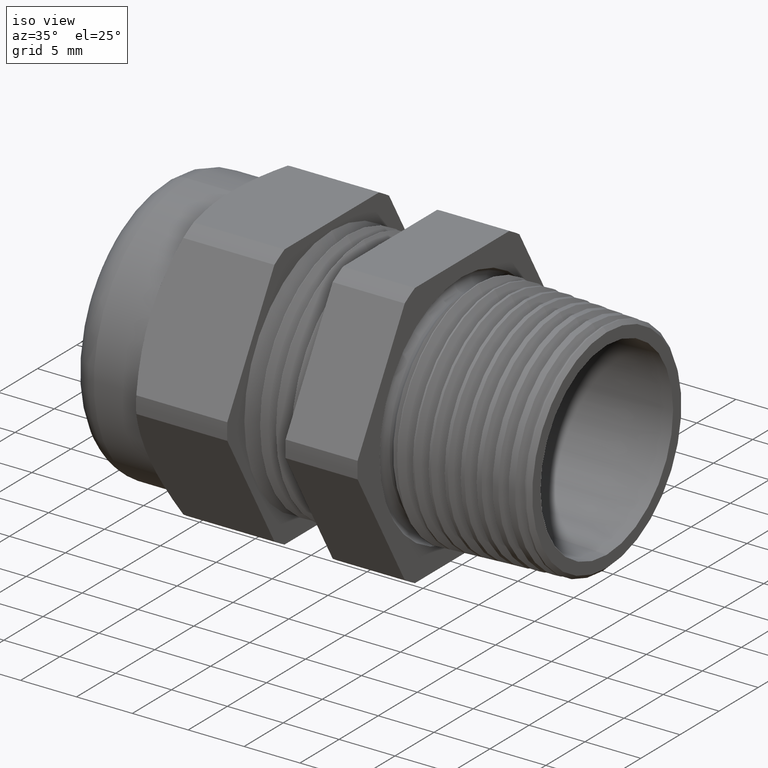
[diagram: clean part render]
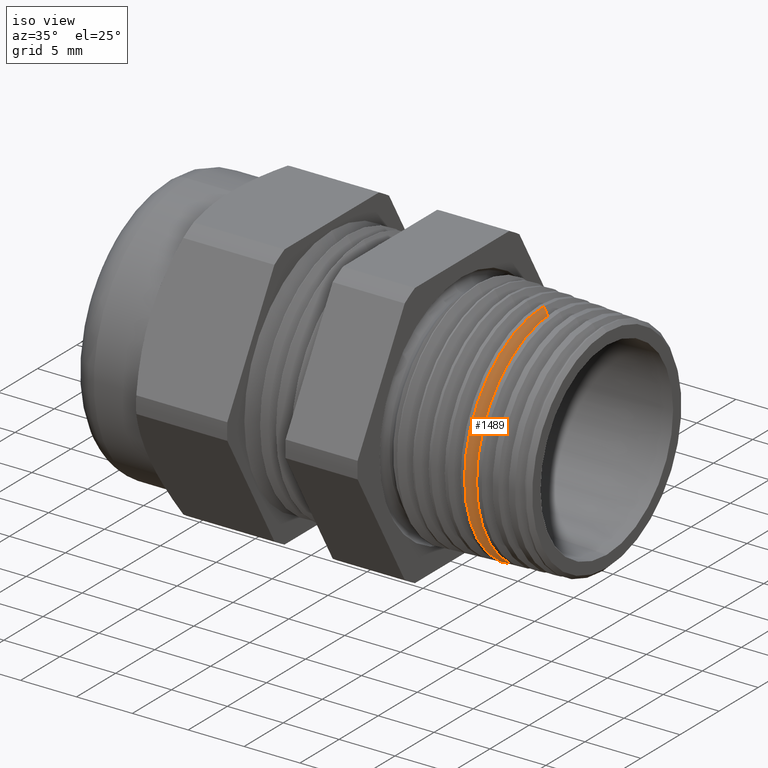
[diagram: same view with one face highlighted and labeled with its STEP entity id]
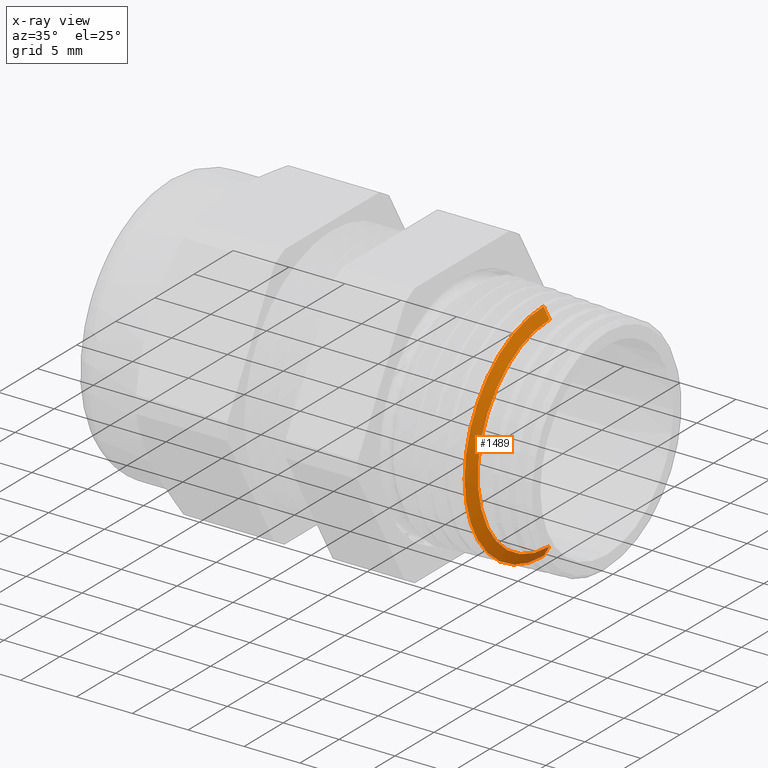
[diagram: x-ray of the same camera — body ghosted, the highlighted face saturated]
A machine part, iso view. The second image highlights one B-rep face of the part: STEP entity #1489.
The next image is the same camera in x-ray: the body ghosted, the highlighted face saturated — about 4% of this face is hidden behind the body in this view.
In plain terms, the highlighted conical surface has half-angle 60 deg.
Its self-contained STEP definition (entity closure, byte-faithful):
#34 = VERTEX_POINT ( 'NONE', #593 ) ;
#281 = EDGE_CURVE ( 'NONE', #3804, #3806, #1071, .T. ) ;
#593 = CARTESIAN_POINT ( 'NONE',  ( 0.3082379998258640300, 4.644773951030919600E-017, -0.3610903495974812600 ) ) ;
#1068 = DIRECTION ( 'NONE',  ( 0.0000000000000000000, 0.0000000000000000000, 1.000000000000000000 ) ) ;
#1069 = DIRECTION ( 'NONE',  ( 1.000000000000000000, 0.0000000000000000000, 0.0000000000000000000 ) ) ;
#1070 = AXIS2_PLACEMENT_3D ( 'NONE', #1075, #1069, #1068 ) ;
#1071 = CIRCLE ( 'NONE', #1070, 0.3974588017602477800 ) ;
#1075 = CARTESIAN_POINT ( 'NONE',  ( 0.2872406641796810800, 0.0000000000000000000, 0.0000000000000000000 ) ) ;
#1489 = ADVANCED_FACE ( 'NONE', ( #2533 ), #2528, .T. ) ;
#1639 = ORIENTED_EDGE ( 'NONE', *, *, #1642, .T. ) ;
#1640 = EDGE_LOOP ( 'NONE', ( #1641, #1639, #1648, #1649 ) ) ;
#1641 = ORIENTED_EDGE ( 'NONE', *, *, #3805, .F. ) ;
#1642 = EDGE_CURVE ( 'NONE', #34, #3816, #2769, .T. ) ;
#1648 = ORIENTED_EDGE ( 'NONE', *, *, #3803, .T. ) ;
#1649 = ORIENTED_EDGE ( 'NONE', *, *, #281, .T. ) ;
#2523 = DIRECTION ( 'NONE',  ( 0.0000000000000000000, 0.0000000000000000000, 1.000000000000000000 ) ) ;
#2524 = DIRECTION ( 'NONE',  ( -1.000000000000000000, 0.0000000000000000000, 0.0000000000000000000 ) ) ;
#2525 = CARTESIAN_POINT ( 'NONE',  ( 0.2799999999999997500, 0.0000000000000000000, 0.0000000000000000000 ) ) ;
#2526 = AXIS2_PLACEMENT_3D ( 'NONE', #2525, #2524, #2523 ) ;
#2528 = CONICAL_SURFACE ( 'NONE', #2526, 0.4099999999999999800, 1.047197551196604100 ) ;
#2533 = FACE_OUTER_BOUND ( 'NONE', #1640, .T. ) ;
#2765 = DIRECTION ( 'NONE',  ( 0.0000000000000000000, 0.0000000000000000000, 1.000000000000000000 ) ) ;
#2766 = DIRECTION ( 'NONE',  ( -1.000000000000000000, 0.0000000000000000000, 0.0000000000000000000 ) ) ;
#2767 = CARTESIAN_POINT ( 'NONE',  ( 0.3082379998258640300, 0.0000000000000000000, 0.0000000000000000000 ) ) ;
#2768 = AXIS2_PLACEMENT_3D ( 'NONE', #2767, #2766, #2765 ) ;
#2769 = CIRCLE ( 'NONE', #2768, 0.3610903495974812600 ) ;
#3490 = CARTESIAN_POINT ( 'NONE',  ( 0.3082379998258640300, 0.0000000000000000000, 0.3610903495974812600 ) ) ;
#3492 = CARTESIAN_POINT ( 'NONE',  ( 0.2872406641796810800, 4.871118701082665200E-017, -0.3974588017602477800 ) ) ;
#3493 = DIRECTION ( 'NONE',  ( -0.4999999999999945000, 1.060575238724910700E-016, -0.8660254037844418200 ) ) ;
#3494 = VECTOR ( 'NONE', #3493, 39.37007874015748100 ) ;
#3495 = CARTESIAN_POINT ( 'NONE',  ( 0.2799999999999997500, 5.021051876504148100E-017, -0.4099999999999999800 ) ) ;
#3496 = LINE ( 'NONE', #3495, #3494 ) ;
#3497 = CARTESIAN_POINT ( 'NONE',  ( 0.2872406641796810800, 0.0000000000000000000, 0.3974588017602477800 ) ) ;
#3498 = DIRECTION ( 'NONE',  ( -0.4999999999999945000, 0.0000000000000000000, 0.8660254037844418200 ) ) ;
#3499 = VECTOR ( 'NONE', #3498, 39.37007874015748100 ) ;
#3500 = CARTESIAN_POINT ( 'NONE',  ( 0.2799999999999997500, 0.0000000000000000000, 0.4099999999999999800 ) ) ;
#3501 = LINE ( 'NONE', #3500, #3499 ) ;
#3803 = EDGE_CURVE ( 'NONE', #3816, #3804, #3501, .T. ) ;
#3804 = VERTEX_POINT ( 'NONE', #3497 ) ;
#3805 = EDGE_CURVE ( 'NONE', #34, #3806, #3496, .T. ) ;
#3806 = VERTEX_POINT ( 'NONE', #3492 ) ;
#3816 = VERTEX_POINT ( 'NONE', #3490 ) ;